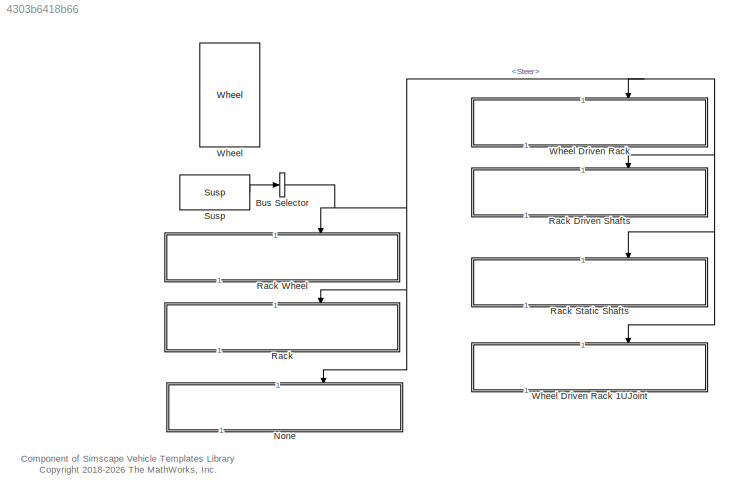
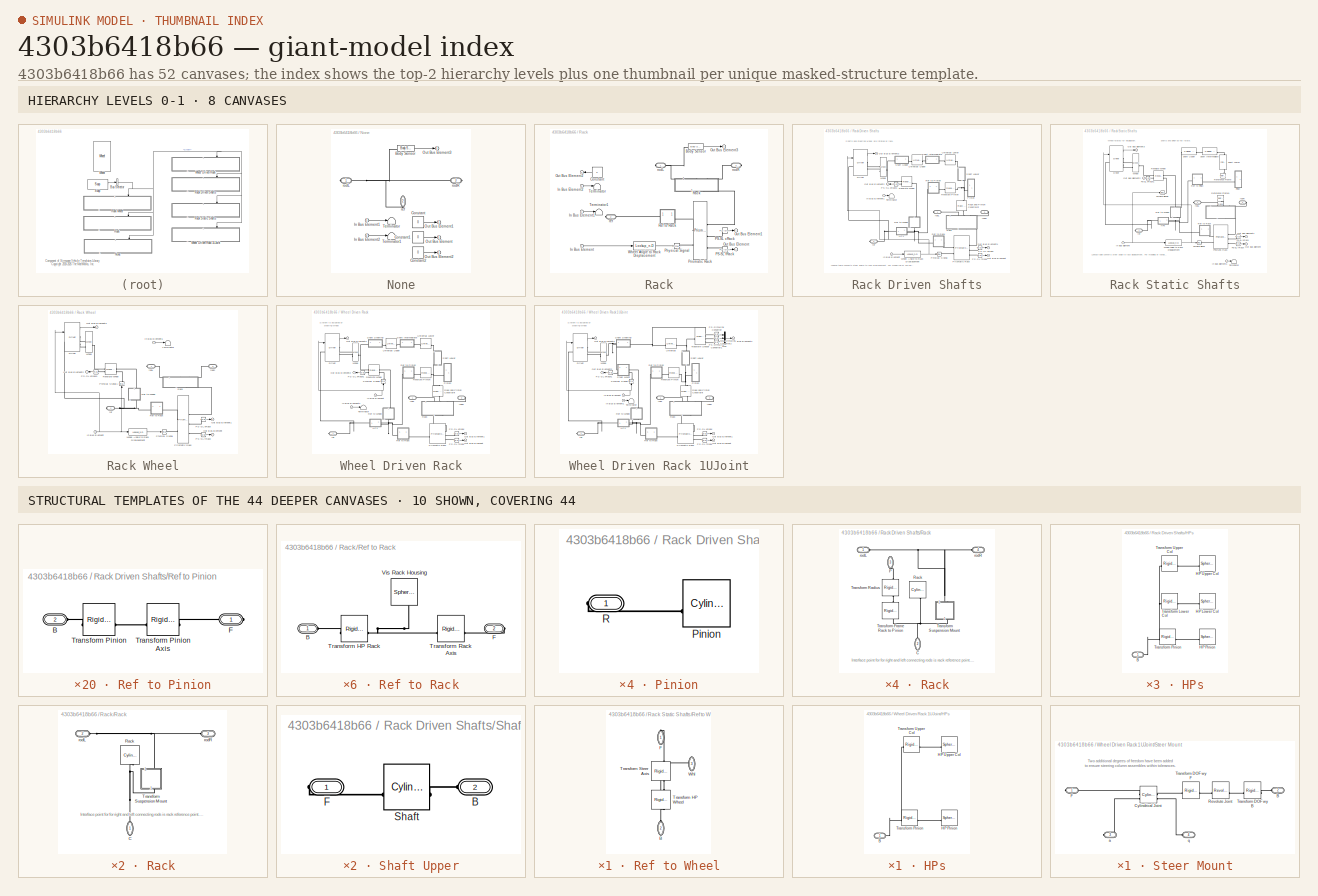
[diagram: thumbnail index - top-2 hierarchy levels (8 canvases) + 10 structural-template representatives of the remaining 44 canvases]
MODEL slx_4303b6418b66
KIND library
CONFIG SolverName = VariableStepAuto
BLOCK [BusSelector] Bus Selector
  OutputSignals = Steer
BLOCK [SubSystem] None
  NameLocation = left
  VariantControl = None
BLOCK [Reference] None/Body Sensor  REF=sm_car_lib/Sensors/Body Sensor  (lib defined in slx_05426f0848b6, slx_5dc2867fb1c9)
  SourceBlock = sm_car_lib/Sensors/Body Sensor
BLOCK [Constant] None/Constant
  Value = 0
BLOCK [Constant] None/Constant1
  Value = 0
BLOCK [Constant] None/Constant2
  Value = 0
BLOCK [Inport] None/In Bus Element1
BLOCK [Inport] None/In Bus Element2
  Port = 2
BLOCK [Outport] None/Out Bus Element
  VectorParamsAs1DForOutWhenUnconnected = off
BLOCK [Outport] None/Out Bus Element1
  VectorParamsAs1DForOutWhenUnconnected = off
BLOCK [Outport] None/Out Bus Element2
  VectorParamsAs1DForOutWhenUnconnected = off
BLOCK [Outport] None/Out Bus Element3
  VectorParamsAs1DForOutWhenUnconnected = off
BLOCK [Terminator] None/Terminator
BLOCK [Terminator] None/Terminator1
BLOCK [PMIOPort] None/ref
  NameLocation = right
  Port = 2
  Side = Right
BLOCK [PMIOPort] None/rodL
  Side = Right
BLOCK [PMIOPort] None/rodR
  Port = 3
  Side = Right
BLOCK [SubSystem] Rack
  NameLocation = left
  Tag = PublishSubsystem
  VariantControl = Rack
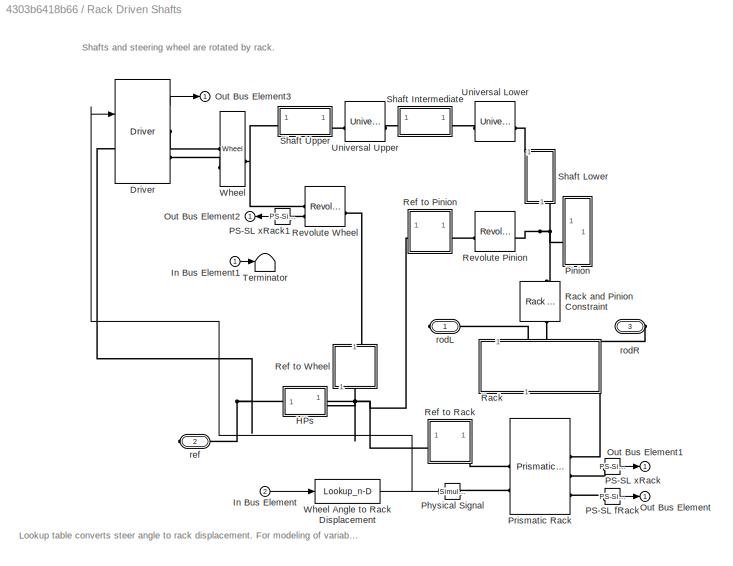
BLOCK [SubSystem] Rack Driven Shafts
  NameLocation = left
  Tag = PublishSubsystem
  VariantControl = Rack
BLOCK [Reference] Rack Driven Shafts/Driver  REF=Human_Models/Driver
  AttributesFormatString = %<LabelModeActiveChoice>
  SourceBlock = Human_Models/Driver
BLOCK [SubSystem] Rack Driven Shafts/HPs
BLOCK [PMIOPort] Rack Driven Shafts/HPs/B
  Side = Left
BLOCK [Reference] Rack Driven Shafts/HPs/HP Lower Col  REF=sm_lib/Body Elements/Spherical Solid
  SourceBlock = sm_lib/Body Elements/Spherical Solid
  SourceType = Spherical Solid
BLOCK [Reference] Rack Driven Shafts/HPs/HP Pinion  REF=sm_lib/Body Elements/Spherical Solid
  SourceBlock = sm_lib/Body Elements/Spherical Solid
  SourceType = Spherical Solid
BLOCK [Reference] Rack Driven Shafts/HPs/HP Upper Col  REF=sm_lib/Body Elements/Spherical Solid
  SourceBlock = sm_lib/Body Elements/Spherical Solid
  SourceType = Spherical Solid
BLOCK [Reference] Rack Driven Shafts/HPs/Transform Lower Col  REF=sm_lib/Frames and
Transforms/Rigid
Transform
  SourceBlock = sm_lib/Frames and\nTransforms/Rigid\nTransform
  SourceType = Rigid\nTransform
BLOCK [Reference] Rack Driven Shafts/HPs/Transform Pinion  REF=sm_lib/Frames and
Transforms/Rigid
Transform
  SourceBlock = sm_lib/Frames and\nTransforms/Rigid\nTransform
  SourceType = Rigid\nTransform
BLOCK [Reference] Rack Driven Shafts/HPs/Transform Upper Col  REF=sm_lib/Frames and
Transforms/Rigid
Transform
  SourceBlock = sm_lib/Frames and\nTransforms/Rigid\nTransform
  SourceType = Rigid\nTransform
BLOCK [Inport] Rack Driven Shafts/In Bus Element
  Port = 2
BLOCK [Inport] Rack Driven Shafts/In Bus Element1
BLOCK [Outport] Rack Driven Shafts/Out Bus Element
  VectorParamsAs1DForOutWhenUnconnected = off
BLOCK [Outport] Rack Driven Shafts/Out Bus Element1
  VectorParamsAs1DForOutWhenUnconnected = off
BLOCK [Outport] Rack Driven Shafts/Out Bus Element2
  VectorParamsAs1DForOutWhenUnconnected = off
BLOCK [Outport] Rack Driven Shafts/Out Bus Element3
  VectorParamsAs1DForOutWhenUnconnected = off
BLOCK [Reference] Rack Driven Shafts/PS-SL fRack  REF=nesl_utility/PS-Simulink
Converter
  SourceBlock = nesl_utility/PS-Simulink\nConverter
  SourceType = PS-Simulink\nConverter
BLOCK [Reference] Rack Driven Shafts/PS-SL xRack  REF=nesl_utility/PS-Simulink
Converter
  SourceBlock = nesl_utility/PS-Simulink\nConverter
  SourceType = PS-Simulink\nConverter
BLOCK [Reference] Rack Driven Shafts/PS-SL xRack1  REF=nesl_utility/PS-Simulink
Converter
  SourceBlock = nesl_utility/PS-Simulink\nConverter
  SourceType = PS-Simulink\nConverter
BLOCK [Reference] Rack Driven Shafts/Physical Signal  REF=nesl_utility/Simulink-PS
Converter
  AttributesFormatString = Filter Time Constant\n%<InputFilterTimeConstant> sec
  SourceBlock = nesl_utility/Simulink-PS\nConverter
  SourceType = Simulink-PS\nConverter
BLOCK [SubSystem] Rack Driven Shafts/Pinion
BLOCK [Reference] Rack Driven Shafts/Pinion/Pinion  REF=sm_lib/Body Elements/Cylindrical Solid
  SourceBlock = sm_lib/Body Elements/Cylindrical Solid
  SourceType = Cylindrical Solid
BLOCK [PMIOPort] Rack Driven Shafts/Pinion/R
  Side = Right
BLOCK [Reference] Rack Driven Shafts/Prismatic Rack  REF=sm_lib/Joints/Prismatic
Joint
  SourceBlock = sm_lib/Joints/Prismatic\nJoint
  SourceType = Prismatic\nJoint
BLOCK [SubSystem] Rack Driven Shafts/Rack
  NameLocation = left
BLOCK [Reference] Rack Driven Shafts/Rack and Pinion Constraint  REF=sm_lib/Gears and
Couplings/Gears/Rack and Pinion
Constraint
  NameLocation = right
  SourceBlock = sm_lib/Gears and\nCouplings/Gears/Rack and Pinion\nConstraint
  SourceType = Rack and Pinion\nConstraint
BLOCK [PMIOPort] Rack Driven Shafts/Rack/C
  NameLocation = left
  Port = 2
  Side = Right
BLOCK [PMIOPort] Rack Driven Shafts/Rack/P
  NameLocation = left
  Port = 3
  Side = Left
BLOCK [Reference] Rack Driven Shafts/Rack/Rack  REF=sm_lib/Body Elements/Cylindrical Solid
  NameLocation = right
  SourceBlock = sm_lib/Body Elements/Cylindrical Solid
  SourceType = Cylindrical Solid
BLOCK [Reference] Rack Driven Shafts/Rack/Transform Frame Rack to Pinion   REF=sm_lib/Frames and
Transforms/Rigid
Transform
  NameLocation = left
  SourceBlock = sm_lib/Frames and\nTransforms/Rigid\nTransform
  SourceType = Rigid\nTransform
BLOCK [Reference] Rack Driven Shafts/Rack/Transform Radius  REF=sm_lib/Frames and
Transforms/Rigid
Transform
  NameLocation = left
  SourceBlock = sm_lib/Frames and\nTransforms/Rigid\nTransform
  SourceType = Rigid\nTransform
BLOCK [SubSystem] Rack Driven Shafts/Rack/Transform Suspension Mount
  NameLocation = right
BLOCK [PMIOPort] Rack Driven Shafts/Rack/Transform Suspension Mount/B
  Side = Left
BLOCK [PMIOPort] Rack Driven Shafts/Rack/Transform Suspension Mount/F
  Port = 2
  Side = Right
BLOCK [Reference] Rack Driven Shafts/Rack/Transform Suspension Mount/Transform HP Rack  REF=sm_lib/Frames and
Transforms/Rigid
Transform
  SourceBlock = sm_lib/Frames and\nTransforms/Rigid\nTransform
  SourceType = Rigid\nTransform
BLOCK [Reference] Rack Driven Shafts/Rack/Transform Suspension Mount/Transform Rack Axis  REF=sm_lib/Frames and
Transforms/Rigid
Transform
  SourceBlock = sm_lib/Frames and\nTransforms/Rigid\nTransform
  SourceType = Rigid\nTransform
BLOCK [PMIOPort] Rack Driven Shafts/Rack/rodL
  Side = Left
BLOCK [PMIOPort] Rack Driven Shafts/Rack/rodR
  Port = 4
  Side = Left
BLOCK [SubSystem] Rack Driven Shafts/Ref to Pinion
BLOCK [PMIOPort] Rack Driven Shafts/Ref to Pinion/B
  Port = 2
  Side = Left
BLOCK [PMIOPort] Rack Driven Shafts/Ref to Pinion/F
  Side = Right
BLOCK [Reference] Rack Driven Shafts/Ref to Pinion/Transform Pinion  REF=sm_lib/Frames and
Transforms/Rigid
Transform
  SourceBlock = sm_lib/Frames and\nTransforms/Rigid\nTransform
  SourceType = Rigid\nTransform
BLOCK [Reference] Rack Driven Shafts/Ref to Pinion/Transform Pinion Axis  REF=sm_lib/Frames and
Transforms/Rigid
Transform
  SourceBlock = sm_lib/Frames and\nTransforms/Rigid\nTransform
  SourceType = Rigid\nTransform
BLOCK [SubSystem] Rack Driven Shafts/Ref to Rack
BLOCK [PMIOPort] Rack Driven Shafts/Ref to Rack/B
  Side = Left
BLOCK [PMIOPort] Rack Driven Shafts/Ref to Rack/F
  Port = 2
  Side = Right
BLOCK [Reference] Rack Driven Shafts/Ref to Rack/Transform HP Rack  REF=sm_lib/Frames and
Transforms/Rigid
Transform
  SourceBlock = sm_lib/Frames and\nTransforms/Rigid\nTransform
  SourceType = Rigid\nTransform
BLOCK [Reference] Rack Driven Shafts/Ref to Rack/Transform Rack Axis  REF=sm_lib/Frames and
Transforms/Rigid
Transform
  SourceBlock = sm_lib/Frames and\nTransforms/Rigid\nTransform
  SourceType = Rigid\nTransform
BLOCK [Reference] Rack Driven Shafts/Ref to Rack/Vis Rack Housing  REF=sm_lib/Body Elements/Spherical Solid
  NameLocation = left
  SourceBlock = sm_lib/Body Elements/Spherical Solid
  SourceType = Spherical Solid
BLOCK [SubSystem] Rack Driven Shafts/Ref to Wheel
  NameLocation = left
BLOCK [PMIOPort] Rack Driven Shafts/Ref to Wheel/B
  NameLocation = right
  Port = 2
  Side = Left
BLOCK [PMIOPort] Rack Driven Shafts/Ref to Wheel/F
  NameLocation = left
  Side = Right
BLOCK [Reference] Rack Driven Shafts/Ref to Wheel/Transform HP Wheel  REF=sm_lib/Frames and
Transforms/Rigid
Transform
  NameLocation = left
  SourceBlock = sm_lib/Frames and\nTransforms/Rigid\nTransform
  SourceType = Rigid\nTransform
BLOCK [Reference] Rack Driven Shafts/Ref to Wheel/Transform Steer Axis  REF=sm_lib/Frames and
Transforms/Rigid
Transform
  NameLocation = left
  SourceBlock = sm_lib/Frames and\nTransforms/Rigid\nTransform
  SourceType = Rigid\nTransform
BLOCK [Reference] Rack Driven Shafts/Revolute Pinion  REF=sm_lib/Joints/Revolute Joint
  SourceBlock = sm_lib/Joints/Revolute Joint
  SourceType = Revolute Joint
BLOCK [Reference] Rack Driven Shafts/Revolute Wheel  REF=sm_lib/Joints/Revolute Joint
  SourceBlock = sm_lib/Joints/Revolute Joint
  SourceType = Revolute Joint
BLOCK [SubSystem] Rack Driven Shafts/Shaft Intermediate
BLOCK [PMIOPort] Rack Driven Shafts/Shaft Intermediate/B
  Port = 2
  Side = Right
BLOCK [PMIOPort] Rack Driven Shafts/Shaft Intermediate/F
  Side = Left
BLOCK [Reference] Rack Driven Shafts/Shaft Intermediate/Shaft  REF=sm_lib/Body Elements/Cylindrical Solid
  SourceBlock = sm_lib/Body Elements/Cylindrical Solid
  SourceType = Cylindrical Solid
BLOCK [Reference] Rack Driven Shafts/Shaft Intermediate/Transform Universals  REF=sm_lib/Frames and
Transforms/Rigid
Transform
  SourceBlock = sm_lib/Frames and\nTransforms/Rigid\nTransform
  SourceType = Rigid\nTransform
BLOCK [SubSystem] Rack Driven Shafts/Shaft Lower
  NameLocation = left
BLOCK [PMIOPort] Rack Driven Shafts/Shaft Lower/B
  Port = 2
  Side = Right
BLOCK [PMIOPort] Rack Driven Shafts/Shaft Lower/F
  Side = Left
BLOCK [Reference] Rack Driven Shafts/Shaft Lower/Shaft  REF=sm_lib/Body Elements/Cylindrical Solid
  SourceBlock = sm_lib/Body Elements/Cylindrical Solid
  SourceType = Cylindrical Solid
BLOCK [Reference] Rack Driven Shafts/Shaft Lower/Transform Shaft  REF=sm_lib/Frames and
Transforms/Rigid
Transform
  SourceBlock = sm_lib/Frames and\nTransforms/Rigid\nTransform
  SourceType = Rigid\nTransform
BLOCK [SubSystem] Rack Driven Shafts/Shaft Upper
BLOCK [PMIOPort] Rack Driven Shafts/Shaft Upper/B
  Port = 2
  Side = Left
BLOCK [PMIOPort] Rack Driven Shafts/Shaft Upper/F
  Side = Right
BLOCK [Reference] Rack Driven Shafts/Shaft Upper/Shaft  REF=sm_lib/Body Elements/Cylindrical Solid
  SourceBlock = sm_lib/Body Elements/Cylindrical Solid
  SourceType = Cylindrical Solid
BLOCK [Terminator] Rack Driven Shafts/Terminator
BLOCK [Reference] Rack Driven Shafts/Universal Lower  REF=sm_lib/Joints/Universal
Joint
  NameLocation = top
  SourceBlock = sm_lib/Joints/Universal\nJoint
  SourceType = Universal\nJoint
BLOCK [Reference] Rack Driven Shafts/Universal Upper  REF=sm_lib/Joints/Universal
Joint
  NameLocation = top
  SourceBlock = sm_lib/Joints/Universal\nJoint
  SourceType = Universal\nJoint
BLOCK [Reference] Rack Driven Shafts/Wheel  REF=SteeringWheel_Systems/Wheel
  SourceBlock = SteeringWheel_Systems/Wheel
BLOCK [Lookup_n-D] Rack Driven Shafts/Wheel Angle to Rack Displacement
  BreakpointsForDimension1 = whl2rack_whlangle
  InputPortMap = u0
  InternalRulePriority = Speed
  NameLocation = top
  NumberOfTableDimensions = 1
  RndMeth = Simplest
  Table = whl2rack_rackdisp
BLOCK [PMIOPort] Rack Driven Shafts/ref
  Port = 2
  Side = Right
BLOCK [PMIOPort] Rack Driven Shafts/rodL
  Side = Right
BLOCK [PMIOPort] Rack Driven Shafts/rodR
  Port = 3
  Side = Right
BLOCK [SubSystem] Rack Static Shafts
  NameLocation = left
  Tag = PublishSubsystem
  VariantControl = Rack
BLOCK [Reference] Rack Static Shafts/Driver  REF=Human_Models/Driver
  AttributesFormatString = %<LabelModeActiveChoice>
  SourceBlock = Human_Models/Driver
BLOCK [SubSystem] Rack Static Shafts/HPs
BLOCK [PMIOPort] Rack Static Shafts/HPs/B
  Side = Left
BLOCK [Reference] Rack Static Shafts/HPs/HP Lower Col  REF=sm_lib/Body Elements/Spherical Solid
  SourceBlock = sm_lib/Body Elements/Spherical Solid
  SourceType = Spherical Solid
BLOCK [Reference] Rack Static Shafts/HPs/HP Pinion  REF=sm_lib/Body Elements/Spherical Solid
  SourceBlock = sm_lib/Body Elements/Spherical Solid
  SourceType = Spherical Solid
BLOCK [Reference] Rack Static Shafts/HPs/HP Upper Col  REF=sm_lib/Body Elements/Spherical Solid
  SourceBlock = sm_lib/Body Elements/Spherical Solid
  SourceType = Spherical Solid
BLOCK [Reference] Rack Static Shafts/HPs/Transform Lower Col  REF=sm_lib/Frames and
Transforms/Rigid
Transform
  SourceBlock = sm_lib/Frames and\nTransforms/Rigid\nTransform
  SourceType = Rigid\nTransform
BLOCK [Reference] Rack Static Shafts/HPs/Transform Pinion  REF=sm_lib/Frames and
Transforms/Rigid
Transform
  SourceBlock = sm_lib/Frames and\nTransforms/Rigid\nTransform
  SourceType = Rigid\nTransform
BLOCK [Reference] Rack Static Shafts/HPs/Transform Upper Col  REF=sm_lib/Frames and
Transforms/Rigid
Transform
  SourceBlock = sm_lib/Frames and\nTransforms/Rigid\nTransform
  SourceType = Rigid\nTransform
BLOCK [Inport] Rack Static Shafts/In Bus Element
  Port = 2
BLOCK [Inport] Rack Static Shafts/In Bus Element1
BLOCK [Outport] Rack Static Shafts/Out Bus Element
  VectorParamsAs1DForOutWhenUnconnected = off
BLOCK [Outport] Rack Static Shafts/Out Bus Element1
  VectorParamsAs1DForOutWhenUnconnected = off
BLOCK [Outport] Rack Static Shafts/Out Bus Element2
  VectorParamsAs1DForOutWhenUnconnected = off
BLOCK [Outport] Rack Static Shafts/Out Bus Element3
  VectorParamsAs1DForOutWhenUnconnected = off
BLOCK [Reference] Rack Static Shafts/PS-SL fRack  REF=nesl_utility/PS-Simulink
Converter
  SourceBlock = nesl_utility/PS-Simulink\nConverter
  SourceType = PS-Simulink\nConverter
BLOCK [Reference] Rack Static Shafts/PS-SL xRack  REF=nesl_utility/PS-Simulink
Converter
  SourceBlock = nesl_utility/PS-Simulink\nConverter
  SourceType = PS-Simulink\nConverter
BLOCK [Reference] Rack Static Shafts/PS-SL xRack1  REF=nesl_utility/PS-Simulink
Converter
  SourceBlock = nesl_utility/PS-Simulink\nConverter
  SourceType = PS-Simulink\nConverter
BLOCK [Reference] Rack Static Shafts/Physical Signal  REF=nesl_utility/Simulink-PS
Converter
  AttributesFormatString = Filter Time Constant\n%<InputFilterTimeConstant> sec
  SourceBlock = nesl_utility/Simulink-PS\nConverter
  SourceType = Simulink-PS\nConverter
BLOCK [Reference] Rack Static Shafts/Physical Signal1  REF=nesl_utility/Simulink-PS
Converter
  AttributesFormatString = Filter Time Constant\n%<InputFilterTimeConstant> sec
  SourceBlock = nesl_utility/Simulink-PS\nConverter
  SourceType = Simulink-PS\nConverter
BLOCK [SubSystem] Rack Static Shafts/Pinion
BLOCK [Reference] Rack Static Shafts/Pinion/Pinion  REF=sm_lib/Body Elements/Cylindrical Solid
  SourceBlock = sm_lib/Body Elements/Cylindrical Solid
  SourceType = Cylindrical Solid
BLOCK [PMIOPort] Rack Static Shafts/Pinion/R
  Side = Right
BLOCK [Reference] Rack Static Shafts/Prismatic Rack  REF=sm_lib/Joints/Prismatic
Joint
  SourceBlock = sm_lib/Joints/Prismatic\nJoint
  SourceType = Prismatic\nJoint
BLOCK [SubSystem] Rack Static Shafts/Rack
  NameLocation = left
BLOCK [PMIOPort] Rack Static Shafts/Rack/C
  NameLocation = left
  Port = 2
  Side = Right
BLOCK [PMIOPort] Rack Static Shafts/Rack/P
  NameLocation = left
  Port = 3
  Side = Left
BLOCK [Reference] Rack Static Shafts/Rack/Rack  REF=sm_lib/Body Elements/Cylindrical Solid
  NameLocation = right
  SourceBlock = sm_lib/Body Elements/Cylindrical Solid
  SourceType = Cylindrical Solid
BLOCK [Reference] Rack Static Shafts/Rack/Transform Frame Rack to Pinion   REF=sm_lib/Frames and
Transforms/Rigid
Transform
  NameLocation = left
  SourceBlock = sm_lib/Frames and\nTransforms/Rigid\nTransform
  SourceType = Rigid\nTransform
BLOCK [Reference] Rack Static Shafts/Rack/Transform Radius  REF=sm_lib/Frames and
Transforms/Rigid
Transform
  NameLocation = left
  SourceBlock = sm_lib/Frames and\nTransforms/Rigid\nTransform
  SourceType = Rigid\nTransform
BLOCK [SubSystem] Rack Static Shafts/Rack/Transform Suspension Mount
  NameLocation = right
BLOCK [PMIOPort] Rack Static Shafts/Rack/Transform Suspension Mount/B
  Side = Left
BLOCK [PMIOPort] Rack Static Shafts/Rack/Transform Suspension Mount/F
  Port = 2
  Side = Right
BLOCK [Reference] Rack Static Shafts/Rack/Transform Suspension Mount/Transform HP Rack  REF=sm_lib/Frames and
Transforms/Rigid
Transform
  SourceBlock = sm_lib/Frames and\nTransforms/Rigid\nTransform
  SourceType = Rigid\nTransform
BLOCK [Reference] Rack Static Shafts/Rack/Transform Suspension Mount/Transform Rack Axis  REF=sm_lib/Frames and
Transforms/Rigid
Transform
  SourceBlock = sm_lib/Frames and\nTransforms/Rigid\nTransform
  SourceType = Rigid\nTransform
BLOCK [PMIOPort] Rack Static Shafts/Rack/rodL
  Side = Left
BLOCK [PMIOPort] Rack Static Shafts/Rack/rodR
  Port = 4
  Side = Left
BLOCK [SubSystem] Rack Static Shafts/Ref to Pinion
BLOCK [PMIOPort] Rack Static Shafts/Ref to Pinion/B
  Port = 2
  Side = Left
BLOCK [PMIOPort] Rack Static Shafts/Ref to Pinion/F
  Side = Right
BLOCK [Reference] Rack Static Shafts/Ref to Pinion/Transform Pinion  REF=sm_lib/Frames and
Transforms/Rigid
Transform
  SourceBlock = sm_lib/Frames and\nTransforms/Rigid\nTransform
  SourceType = Rigid\nTransform
BLOCK [Reference] Rack Static Shafts/Ref to Pinion/Transform Pinion Axis  REF=sm_lib/Frames and
Transforms/Rigid
Transform
  SourceBlock = sm_lib/Frames and\nTransforms/Rigid\nTransform
  SourceType = Rigid\nTransform
BLOCK [SubSystem] Rack Static Shafts/Ref to Rack
BLOCK [PMIOPort] Rack Static Shafts/Ref to Rack/B
  Side = Left
BLOCK [PMIOPort] Rack Static Shafts/Ref to Rack/F
  Port = 2
  Side = Right
BLOCK [Reference] Rack Static Shafts/Ref to Rack/Transform HP Rack  REF=sm_lib/Frames and
Transforms/Rigid
Transform
  SourceBlock = sm_lib/Frames and\nTransforms/Rigid\nTransform
  SourceType = Rigid\nTransform
BLOCK [Reference] Rack Static Shafts/Ref to Rack/Transform Rack Axis  REF=sm_lib/Frames and
Transforms/Rigid
Transform
  SourceBlock = sm_lib/Frames and\nTransforms/Rigid\nTransform
  SourceType = Rigid\nTransform
BLOCK [Reference] Rack Static Shafts/Ref to Rack/Vis Rack Housing  REF=sm_lib/Body Elements/Spherical Solid
  NameLocation = left
  SourceBlock = sm_lib/Body Elements/Spherical Solid
  SourceType = Spherical Solid
BLOCK [SubSystem] Rack Static Shafts/Ref to Wheel
  NameLocation = left
BLOCK [PMIOPort] Rack Static Shafts/Ref to Wheel/B
  NameLocation = right
  Port = 2
  Side = Left
BLOCK [PMIOPort] Rack Static Shafts/Ref to Wheel/F
  NameLocation = left
  Side = Right
BLOCK [Reference] Rack Static Shafts/Ref to Wheel/Transform HP Wheel  REF=sm_lib/Frames and
Transforms/Rigid
Transform
  NameLocation = left
  SourceBlock = sm_lib/Frames and\nTransforms/Rigid\nTransform
  SourceType = Rigid\nTransform
BLOCK [Reference] Rack Static Shafts/Ref to Wheel/Transform Steer Axis  REF=sm_lib/Frames and
Transforms/Rigid
Transform
  NameLocation = left
  SourceBlock = sm_lib/Frames and\nTransforms/Rigid\nTransform
  SourceType = Rigid\nTransform
BLOCK [PMIOPort] Rack Static Shafts/Ref to Wheel/Whl
  NameLocation = left
  Port = 3
  Side = Right
BLOCK [Reference] Rack Static Shafts/Reference Frame  REF=sm_lib/Frames and
Transforms/Reference
Frame
  NameLocation = right
  SourceBlock = sm_lib/Frames and\nTransforms/Reference\nFrame
  SourceType = Reference\nFrame
BLOCK [Reference] Rack Static Shafts/Reference Frame1  REF=sm_lib/Frames and
Transforms/Reference
Frame
  NameLocation = left
  SourceBlock = sm_lib/Frames and\nTransforms/Reference\nFrame
  SourceType = Reference\nFrame
BLOCK [Reference] Rack Static Shafts/Revolute Wheel  REF=sm_lib/Joints/Revolute Joint
  SourceBlock = sm_lib/Joints/Revolute Joint
  SourceType = Revolute Joint
BLOCK [Reference] Rack Static Shafts/Shaft Intermediate  REF=sm_car_lib/Utilities/Cylinder Between  (lib defined in slx_05426f0848b6, slx_5dc2867fb1c9)
Two Points
  SourceBlock = sm_car_lib/Utilities/Cylinder Between\nTwo Points
  SourceType = Cylinder between two points
BLOCK [Reference] Rack Static Shafts/Shaft Lower  REF=sm_car_lib/Utilities/Cylinder Between  (lib defined in slx_05426f0848b6, slx_5dc2867fb1c9)
Two Points
  NameLocation = right
  SourceBlock = sm_car_lib/Utilities/Cylinder Between\nTwo Points
  SourceType = Cylinder between two points
BLOCK [Reference] Rack Static Shafts/Shaft Upper  REF=sm_car_lib/Utilities/Cylinder Between  (lib defined in slx_05426f0848b6, slx_5dc2867fb1c9)
Two Points
  SourceBlock = sm_car_lib/Utilities/Cylinder Between\nTwo Points
  SourceType = Cylinder between two points
BLOCK [Terminator] Rack Static Shafts/Terminator
BLOCK [Reference] Rack Static Shafts/Wheel  REF=SteeringWheel_Systems/Wheel
  SourceBlock = SteeringWheel_Systems/Wheel
BLOCK [Lookup_n-D] Rack Static Shafts/Wheel Angle to Rack Displacement
  BreakpointsForDimension1 = whl2rack_whlangle
  InputPortMap = u0
  InternalRulePriority = Speed
  NameLocation = top
  NumberOfTableDimensions = 1
  RndMeth = Simplest
  Table = whl2rack_rackdisp
BLOCK [PMIOPort] Rack Static Shafts/ref
  Port = 2
  Side = Right
BLOCK [PMIOPort] Rack Static Shafts/rodL
  Side = Right
BLOCK [PMIOPort] Rack Static Shafts/rodR
  Port = 3
  Side = Right
BLOCK [SubSystem] Rack Wheel
  NameLocation = left
  Tag = PublishSubsystem
  VariantControl = Rack
BLOCK [Reference] Rack Wheel/Driver  REF=Human_Models/Driver
  AttributesFormatString = %<LabelModeActiveChoice>
  SourceBlock = Human_Models/Driver
BLOCK [Inport] Rack Wheel/In Bus Element
  Port = 2
BLOCK [Inport] Rack Wheel/In Bus Element1
BLOCK [Outport] Rack Wheel/Out Bus Element
  VectorParamsAs1DForOutWhenUnconnected = off
BLOCK [Outport] Rack Wheel/Out Bus Element1
  VectorParamsAs1DForOutWhenUnconnected = off
BLOCK [Outport] Rack Wheel/Out Bus Element2
  VectorParamsAs1DForOutWhenUnconnected = off
BLOCK [Outport] Rack Wheel/Out Bus Element3
  VectorParamsAs1DForOutWhenUnconnected = off
BLOCK [Reference] Rack Wheel/PS-SL fRack  REF=nesl_utility/PS-Simulink
Converter
  SourceBlock = nesl_utility/PS-Simulink\nConverter
  SourceType = PS-Simulink\nConverter
BLOCK [Reference] Rack Wheel/PS-SL xRack  REF=nesl_utility/PS-Simulink
Converter
  SourceBlock = nesl_utility/PS-Simulink\nConverter
  SourceType = PS-Simulink\nConverter
BLOCK [Reference] Rack Wheel/PS-SL xRack1  REF=nesl_utility/PS-Simulink
Converter
  SourceBlock = nesl_utility/PS-Simulink\nConverter
  SourceType = PS-Simulink\nConverter
BLOCK [Reference] Rack Wheel/Physical Signal  REF=nesl_utility/Simulink-PS
Converter
  AttributesFormatString = Filter Time Constant\n%<InputFilterTimeConstant> sec
  SourceBlock = nesl_utility/Simulink-PS\nConverter
  SourceType = Simulink-PS\nConverter
BLOCK [Reference] Rack Wheel/Physical Signal1  REF=nesl_utility/Simulink-PS
Converter
  AttributesFormatString = Filter Time Constant\n%<InputFilterTimeConstant> sec
  NameLocation = left
  SourceBlock = nesl_utility/Simulink-PS\nConverter
  SourceType = Simulink-PS\nConverter
BLOCK [Reference] Rack Wheel/Prismatic Rack  REF=sm_lib/Joints/Prismatic
Joint
  SourceBlock = sm_lib/Joints/Prismatic\nJoint
  SourceType = Prismatic\nJoint
BLOCK [SubSystem] Rack Wheel/Rack
  NameLocation = left
BLOCK [PMIOPort] Rack Wheel/Rack/C
  NameLocation = left
  Side = Right
BLOCK [Reference] Rack Wheel/Rack/Rack  REF=sm_lib/Body Elements/Cylindrical Solid
  NameLocation = left
  SourceBlock = sm_lib/Body Elements/Cylindrical Solid
  SourceType = Cylindrical Solid
BLOCK [SubSystem] Rack Wheel/Rack/Transform Suspension Mount
  NameLocation = right
BLOCK [PMIOPort] Rack Wheel/Rack/Transform Suspension Mount/B
  Side = Left
BLOCK [PMIOPort] Rack Wheel/Rack/Transform Suspension Mount/F
  Port = 2
  Side = Right
BLOCK [Reference] Rack Wheel/Rack/Transform Suspension Mount/Transform HP Rack  REF=sm_lib/Frames and
Transforms/Rigid
Transform
  SourceBlock = sm_lib/Frames and\nTransforms/Rigid\nTransform
  SourceType = Rigid\nTransform
BLOCK [Reference] Rack Wheel/Rack/Transform Suspension Mount/Transform Rack Axis  REF=sm_lib/Frames and
Transforms/Rigid
Transform
  SourceBlock = sm_lib/Frames and\nTransforms/Rigid\nTransform
  SourceType = Rigid\nTransform
BLOCK [PMIOPort] Rack Wheel/Rack/rodL
  Port = 2
  Side = Left
BLOCK [PMIOPort] Rack Wheel/Rack/rodR
  Port = 3
  Side = Left
BLOCK [SubSystem] Rack Wheel/Ref to Rack
BLOCK [PMIOPort] Rack Wheel/Ref to Rack/B
  Side = Left
BLOCK [PMIOPort] Rack Wheel/Ref to Rack/F
  Port = 2
  Side = Right
BLOCK [Reference] Rack Wheel/Ref to Rack/Transform HP Rack  REF=sm_lib/Frames and
Transforms/Rigid
Transform
  SourceBlock = sm_lib/Frames and\nTransforms/Rigid\nTransform
  SourceType = Rigid\nTransform
BLOCK [Reference] Rack Wheel/Ref to Rack/Transform Rack Axis  REF=sm_lib/Frames and
Transforms/Rigid
Transform
  SourceBlock = sm_lib/Frames and\nTransforms/Rigid\nTransform
  SourceType = Rigid\nTransform
BLOCK [Reference] Rack Wheel/Ref to Rack/Vis Rack Housing  REF=sm_lib/Body Elements/Spherical Solid
  NameLocation = left
  SourceBlock = sm_lib/Body Elements/Spherical Solid
  SourceType = Spherical Solid
BLOCK [SubSystem] Rack Wheel/Ref to Wheel
  NameLocation = right
BLOCK [PMIOPort] Rack Wheel/Ref to Wheel/B
  NameLocation = right
  Port = 2
  Side = Left
BLOCK [PMIOPort] Rack Wheel/Ref to Wheel/F
  NameLocation = left
  Side = Right
BLOCK [Reference] Rack Wheel/Ref to Wheel/Transform HP Wheel  REF=sm_lib/Frames and
Transforms/Rigid
Transform
  NameLocation = left
  SourceBlock = sm_lib/Frames and\nTransforms/Rigid\nTransform
  SourceType = Rigid\nTransform
BLOCK [Reference] Rack Wheel/Ref to Wheel/Transform Steer Axis  REF=sm_lib/Frames and
Transforms/Rigid
Transform
  NameLocation = left
  SourceBlock = sm_lib/Frames and\nTransforms/Rigid\nTransform
  SourceType = Rigid\nTransform
BLOCK [Reference] Rack Wheel/Revolute Wheel  REF=sm_lib/Joints/Revolute Joint
  SourceBlock = sm_lib/Joints/Revolute Joint
  SourceType = Revolute Joint
BLOCK [Terminator] Rack Wheel/Terminator
BLOCK [Reference] Rack Wheel/Wheel  REF=SteeringWheel_Systems/Wheel
  SourceBlock = SteeringWheel_Systems/Wheel
BLOCK [Lookup_n-D] Rack Wheel/Wheel Angle to Rack Displacement
  BreakpointsForDimension1 = whl2rack_whlangle
  InputPortMap = u0
  InternalRulePriority = Speed
  NumberOfTableDimensions = 1
  RndMeth = Simplest
  Table = whl2rack_rackdisp
BLOCK [PMIOPort] Rack Wheel/ref
  Port = 2
  Side = Right
BLOCK [PMIOPort] Rack Wheel/rodL
  Side = Right
BLOCK [PMIOPort] Rack Wheel/rodR
  Port = 3
  Side = Right
BLOCK [Reference] Rack/Body Sensor  REF=sm_car_lib/Sensors/Body Sensor  (lib defined in slx_05426f0848b6, slx_5dc2867fb1c9)
  SourceBlock = sm_car_lib/Sensors/Body Sensor
BLOCK [Constant] Rack/Constant
  Value = 0
BLOCK [Inport] Rack/In Bus Element
  Port = 2
BLOCK [Inport] Rack/In Bus Element1
BLOCK [Inport] Rack/In Bus Element2
  Port = 2
BLOCK [Outport] Rack/Out Bus Element
  VectorParamsAs1DForOutWhenUnconnected = off
BLOCK [Outport] Rack/Out Bus Element1
  VectorParamsAs1DForOutWhenUnconnected = off
BLOCK [Outport] Rack/Out Bus Element2
  VectorParamsAs1DForOutWhenUnconnected = off
BLOCK [Outport] Rack/Out Bus Element3
  VectorParamsAs1DForOutWhenUnconnected = off
BLOCK [Reference] Rack/PS-SL fRack  REF=nesl_utility/PS-Simulink
Converter
  SourceBlock = nesl_utility/PS-Simulink\nConverter
  SourceType = PS-Simulink\nConverter
BLOCK [Reference] Rack/PS-SL xRack  REF=nesl_utility/PS-Simulink
Converter
  SourceBlock = nesl_utility/PS-Simulink\nConverter
  SourceType = PS-Simulink\nConverter
BLOCK [Reference] Rack/Physical Signal  REF=nesl_utility/Simulink-PS
Converter
  AttributesFormatString = Filter Time Constant\n%<InputFilterTimeConstant> sec
  SourceBlock = nesl_utility/Simulink-PS\nConverter
  SourceType = Simulink-PS\nConverter
BLOCK [Reference] Rack/Prismatic Rack  REF=sm_lib/Joints/Prismatic
Joint
  SourceBlock = sm_lib/Joints/Prismatic\nJoint
  SourceType = Prismatic\nJoint
BLOCK [SubSystem] Rack/Rack
  NameLocation = left
BLOCK [PMIOPort] Rack/Rack/C
  NameLocation = left
  Side = Right
BLOCK [Reference] Rack/Rack/Rack  REF=sm_lib/Body Elements/Cylindrical Solid
  NameLocation = left
  SourceBlock = sm_lib/Body Elements/Cylindrical Solid
  SourceType = Cylindrical Solid
BLOCK [SubSystem] Rack/Rack/Transform Suspension Mount
  NameLocation = right
BLOCK [PMIOPort] Rack/Rack/Transform Suspension Mount/B
  Side = Left
BLOCK [PMIOPort] Rack/Rack/Transform Suspension Mount/F
  Port = 2
  Side = Right
BLOCK [Reference] Rack/Rack/Transform Suspension Mount/Transform HP Rack  REF=sm_lib/Frames and
Transforms/Rigid
Transform
  SourceBlock = sm_lib/Frames and\nTransforms/Rigid\nTransform
  SourceType = Rigid\nTransform
BLOCK [Reference] Rack/Rack/Transform Suspension Mount/Transform Rack Axis  REF=sm_lib/Frames and
Transforms/Rigid
Transform
  SourceBlock = sm_lib/Frames and\nTransforms/Rigid\nTransform
  SourceType = Rigid\nTransform
BLOCK [PMIOPort] Rack/Rack/rodL
  Port = 2
  Side = Left
BLOCK [PMIOPort] Rack/Rack/rodR
  Port = 3
  Side = Left
BLOCK [SubSystem] Rack/Ref to Rack
BLOCK [PMIOPort] Rack/Ref to Rack/B
  Side = Left
BLOCK [PMIOPort] Rack/Ref to Rack/F
  Port = 2
  Side = Right
BLOCK [Reference] Rack/Ref to Rack/Transform HP Rack  REF=sm_lib/Frames and
Transforms/Rigid
Transform
  SourceBlock = sm_lib/Frames and\nTransforms/Rigid\nTransform
  SourceType = Rigid\nTransform
BLOCK [Reference] Rack/Ref to Rack/Transform Rack Axis  REF=sm_lib/Frames and
Transforms/Rigid
Transform
  SourceBlock = sm_lib/Frames and\nTransforms/Rigid\nTransform
  SourceType = Rigid\nTransform
BLOCK [Reference] Rack/Ref to Rack/Vis Rack Housing  REF=sm_lib/Body Elements/Spherical Solid
  NameLocation = left
  SourceBlock = sm_lib/Body Elements/Spherical Solid
  SourceType = Spherical Solid
BLOCK [Terminator] Rack/Terminator
BLOCK [Terminator] Rack/Terminator1
BLOCK [Lookup_n-D] Rack/Wheel Angle to Rack Displacement
  BreakpointsForDimension1 = whl2rack_whlangle
  InputPortMap = u0
  InternalRulePriority = Speed
  NumberOfTableDimensions = 1
  RndMeth = Simplest
  Table = whl2rack_rackdisp
BLOCK [PMIOPort] Rack/ref
  Port = 2
  Side = Right
BLOCK [PMIOPort] Rack/rodL
  Side = Right
BLOCK [PMIOPort] Rack/rodR
  Port = 3
  Side = Right
BLOCK [Reference] Susp  REF=sm_car_lib/Inputs/Control Bus/Susp  (lib defined in slx_05426f0848b6, slx_5dc2867fb1c9)
  SourceBlock = sm_car_lib/Inputs/Control Bus/Susp
BLOCK [Reference] Wheel  REF=SteeringWheel_Systems/Wheel
  SourceBlock = SteeringWheel_Systems/Wheel
BLOCK [SubSystem] Wheel Driven Rack
  NameLocation = left
  Tag = PublishSubsystem
  VariantControl = Rack
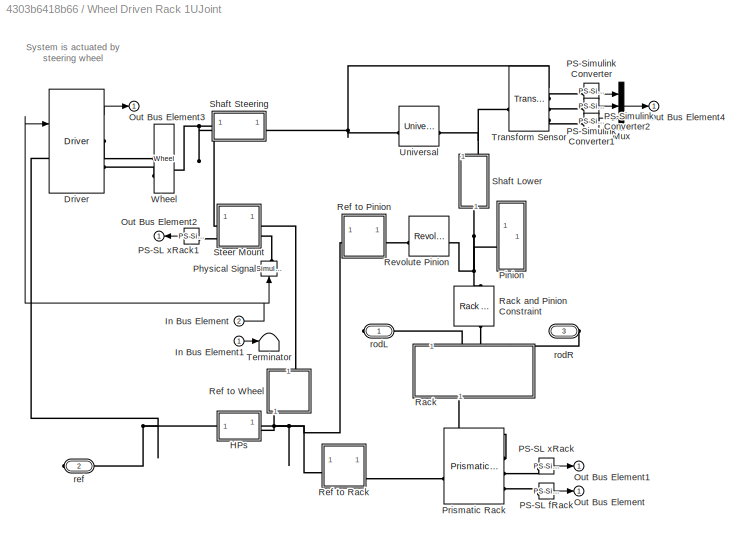
BLOCK [SubSystem] Wheel Driven Rack 1UJoint
  NameLocation = left
  Tag = PublishSubsystem
  VariantControl = Rack
BLOCK [Reference] Wheel Driven Rack 1UJoint/Driver  REF=Human_Models/Driver
  AttributesFormatString = %<LabelModeActiveChoice>
  SourceBlock = Human_Models/Driver
BLOCK [SubSystem] Wheel Driven Rack 1UJoint/HPs
BLOCK [PMIOPort] Wheel Driven Rack 1UJoint/HPs/B
  Side = Left
BLOCK [Reference] Wheel Driven Rack 1UJoint/HPs/HP Pinion  REF=sm_lib/Body Elements/Spherical Solid
  SourceBlock = sm_lib/Body Elements/Spherical Solid
  SourceType = Spherical Solid
BLOCK [Reference] Wheel Driven Rack 1UJoint/HPs/HP Upper Col  REF=sm_lib/Body Elements/Spherical Solid
  SourceBlock = sm_lib/Body Elements/Spherical Solid
  SourceType = Spherical Solid
BLOCK [Reference] Wheel Driven Rack 1UJoint/HPs/Transform Pinion  REF=sm_lib/Frames and
Transforms/Rigid
Transform
  SourceBlock = sm_lib/Frames and\nTransforms/Rigid\nTransform
  SourceType = Rigid\nTransform
BLOCK [Reference] Wheel Driven Rack 1UJoint/HPs/Transform Upper Col  REF=sm_lib/Frames and
Transforms/Rigid
Transform
  SourceBlock = sm_lib/Frames and\nTransforms/Rigid\nTransform
  SourceType = Rigid\nTransform
BLOCK [Inport] Wheel Driven Rack 1UJoint/In Bus Element
  Port = 2
BLOCK [Inport] Wheel Driven Rack 1UJoint/In Bus Element1
BLOCK [Mux] Wheel Driven Rack 1UJoint/Mux
  DisplayOption = bar
  Inputs = 3
BLOCK [Outport] Wheel Driven Rack 1UJoint/Out Bus Element
  VectorParamsAs1DForOutWhenUnconnected = off
BLOCK [Outport] Wheel Driven Rack 1UJoint/Out Bus Element1
  VectorParamsAs1DForOutWhenUnconnected = off
BLOCK [Outport] Wheel Driven Rack 1UJoint/Out Bus Element2
  VectorParamsAs1DForOutWhenUnconnected = off
BLOCK [Outport] Wheel Driven Rack 1UJoint/Out Bus Element3
  VectorParamsAs1DForOutWhenUnconnected = off
BLOCK [Outport] Wheel Driven Rack 1UJoint/Out Bus Element4
  VectorParamsAs1DForOutWhenUnconnected = off
BLOCK [Reference] Wheel Driven Rack 1UJoint/PS-SL fRack  REF=nesl_utility/PS-Simulink
Converter
  SourceBlock = nesl_utility/PS-Simulink\nConverter
  SourceType = PS-Simulink\nConverter
BLOCK [Reference] Wheel Driven Rack 1UJoint/PS-SL xRack  REF=nesl_utility/PS-Simulink
Converter
  SourceBlock = nesl_utility/PS-Simulink\nConverter
  SourceType = PS-Simulink\nConverter
BLOCK [Reference] Wheel Driven Rack 1UJoint/PS-SL xRack1  REF=nesl_utility/PS-Simulink
Converter
  SourceBlock = nesl_utility/PS-Simulink\nConverter
  SourceType = PS-Simulink\nConverter
BLOCK [Reference] Wheel Driven Rack 1UJoint/PS-Simulink Converter  REF=nesl_utility/PS-Simulink
Converter
  SourceBlock = nesl_utility/PS-Simulink\nConverter
  SourceType = PS-Simulink\nConverter
BLOCK [Reference] Wheel Driven Rack 1UJoint/PS-Simulink Converter1  REF=nesl_utility/PS-Simulink
Converter
  SourceBlock = nesl_utility/PS-Simulink\nConverter
  SourceType = PS-Simulink\nConverter
BLOCK [Reference] Wheel Driven Rack 1UJoint/PS-Simulink Converter2  REF=nesl_utility/PS-Simulink
Converter
  SourceBlock = nesl_utility/PS-Simulink\nConverter
  SourceType = PS-Simulink\nConverter
BLOCK [Reference] Wheel Driven Rack 1UJoint/Physical Signal  REF=nesl_utility/Simulink-PS
Converter
  AttributesFormatString = Filter Time Constant\n%<InputFilterTimeConstant> sec
  NameLocation = left
  SourceBlock = nesl_utility/Simulink-PS\nConverter
  SourceType = Simulink-PS\nConverter
BLOCK [SubSystem] Wheel Driven Rack 1UJoint/Pinion
BLOCK [Reference] Wheel Driven Rack 1UJoint/Pinion/Pinion  REF=sm_lib/Body Elements/Cylindrical Solid
  SourceBlock = sm_lib/Body Elements/Cylindrical Solid
  SourceType = Cylindrical Solid
BLOCK [PMIOPort] Wheel Driven Rack 1UJoint/Pinion/R
  Side = Right
BLOCK [Reference] Wheel Driven Rack 1UJoint/Prismatic Rack  REF=sm_lib/Joints/Prismatic
Joint
  SourceBlock = sm_lib/Joints/Prismatic\nJoint
  SourceType = Prismatic\nJoint
BLOCK [SubSystem] Wheel Driven Rack 1UJoint/Rack
  NameLocation = left
BLOCK [Reference] Wheel Driven Rack 1UJoint/Rack and Pinion Constraint  REF=sm_lib/Gears and
Couplings/Gears/Rack and Pinion
Constraint
  NameLocation = right
  SourceBlock = sm_lib/Gears and\nCouplings/Gears/Rack and Pinion\nConstraint
  SourceType = Rack and Pinion\nConstraint
BLOCK [PMIOPort] Wheel Driven Rack 1UJoint/Rack/C
  NameLocation = left
  Port = 2
  Side = Right
BLOCK [PMIOPort] Wheel Driven Rack 1UJoint/Rack/P
  NameLocation = left
  Port = 3
  Side = Left
BLOCK [Reference] Wheel Driven Rack 1UJoint/Rack/Rack  REF=sm_lib/Body Elements/Cylindrical Solid
  NameLocation = right
  SourceBlock = sm_lib/Body Elements/Cylindrical Solid
  SourceType = Cylindrical Solid
BLOCK [Reference] Wheel Driven Rack 1UJoint/Rack/Transform Frame Rack to Pinion   REF=sm_lib/Frames and
Transforms/Rigid
Transform
  NameLocation = left
  SourceBlock = sm_lib/Frames and\nTransforms/Rigid\nTransform
  SourceType = Rigid\nTransform
BLOCK [Reference] Wheel Driven Rack 1UJoint/Rack/Transform Radius  REF=sm_lib/Frames and
Transforms/Rigid
Transform
  NameLocation = left
  SourceBlock = sm_lib/Frames and\nTransforms/Rigid\nTransform
  SourceType = Rigid\nTransform
BLOCK [SubSystem] Wheel Driven Rack 1UJoint/Rack/Transform Suspension Mount
  NameLocation = right
BLOCK [PMIOPort] Wheel Driven Rack 1UJoint/Rack/Transform Suspension Mount/B
  Side = Left
BLOCK [PMIOPort] Wheel Driven Rack 1UJoint/Rack/Transform Suspension Mount/F
  Port = 2
  Side = Right
BLOCK [Reference] Wheel Driven Rack 1UJoint/Rack/Transform Suspension Mount/Transform HP Rack  REF=sm_lib/Frames and
Transforms/Rigid
Transform
  SourceBlock = sm_lib/Frames and\nTransforms/Rigid\nTransform
  SourceType = Rigid\nTransform
BLOCK [Reference] Wheel Driven Rack 1UJoint/Rack/Transform Suspension Mount/Transform Rack Axis  REF=sm_lib/Frames and
Transforms/Rigid
Transform
  SourceBlock = sm_lib/Frames and\nTransforms/Rigid\nTransform
  SourceType = Rigid\nTransform
BLOCK [PMIOPort] Wheel Driven Rack 1UJoint/Rack/rodL
  Side = Left
BLOCK [PMIOPort] Wheel Driven Rack 1UJoint/Rack/rodR
  Port = 4
  Side = Left
BLOCK [SubSystem] Wheel Driven Rack 1UJoint/Ref to Pinion
BLOCK [PMIOPort] Wheel Driven Rack 1UJoint/Ref to Pinion/B
  Port = 2
  Side = Left
BLOCK [PMIOPort] Wheel Driven Rack 1UJoint/Ref to Pinion/F
  Side = Right
BLOCK [Reference] Wheel Driven Rack 1UJoint/Ref to Pinion/Transform Pinion  REF=sm_lib/Frames and
Transforms/Rigid
Transform
  SourceBlock = sm_lib/Frames and\nTransforms/Rigid\nTransform
  SourceType = Rigid\nTransform
BLOCK [Reference] Wheel Driven Rack 1UJoint/Ref to Pinion/Transform Pinion Axis  REF=sm_lib/Frames and
Transforms/Rigid
Transform
  SourceBlock = sm_lib/Frames and\nTransforms/Rigid\nTransform
  SourceType = Rigid\nTransform
BLOCK [SubSystem] Wheel Driven Rack 1UJoint/Ref to Rack
BLOCK [PMIOPort] Wheel Driven Rack 1UJoint/Ref to Rack/B
  Side = Left
BLOCK [PMIOPort] Wheel Driven Rack 1UJoint/Ref to Rack/F
  Port = 2
  Side = Right
BLOCK [Reference] Wheel Driven Rack 1UJoint/Ref to Rack/Transform HP Rack  REF=sm_lib/Frames and
Transforms/Rigid
Transform
  SourceBlock = sm_lib/Frames and\nTransforms/Rigid\nTransform
  SourceType = Rigid\nTransform
BLOCK [Reference] Wheel Driven Rack 1UJoint/Ref to Rack/Transform Rack Axis  REF=sm_lib/Frames and
Transforms/Rigid
Transform
  SourceBlock = sm_lib/Frames and\nTransforms/Rigid\nTransform
  SourceType = Rigid\nTransform
BLOCK [Reference] Wheel Driven Rack 1UJoint/Ref to Rack/Vis Rack Housing  REF=sm_lib/Body Elements/Spherical Solid
  NameLocation = left
  SourceBlock = sm_lib/Body Elements/Spherical Solid
  SourceType = Spherical Solid
BLOCK [SubSystem] Wheel Driven Rack 1UJoint/Ref to Wheel
  NameLocation = left
BLOCK [PMIOPort] Wheel Driven Rack 1UJoint/Ref to Wheel/B
  NameLocation = right
  Port = 2
  Side = Left
BLOCK [PMIOPort] Wheel Driven Rack 1UJoint/Ref to Wheel/F
  NameLocation = left
  Side = Right
BLOCK [Reference] Wheel Driven Rack 1UJoint/Ref to Wheel/Transform HP Wheel  REF=sm_lib/Frames and
Transforms/Rigid
Transform
  NameLocation = left
  SourceBlock = sm_lib/Frames and\nTransforms/Rigid\nTransform
  SourceType = Rigid\nTransform
BLOCK [Reference] Wheel Driven Rack 1UJoint/Ref to Wheel/Transform Steer Axis  REF=sm_lib/Frames and
Transforms/Rigid
Transform
  NameLocation = left
  SourceBlock = sm_lib/Frames and\nTransforms/Rigid\nTransform
  SourceType = Rigid\nTransform
BLOCK [Reference] Wheel Driven Rack 1UJoint/Revolute Pinion  REF=sm_lib/Joints/Revolute Joint
  SourceBlock = sm_lib/Joints/Revolute Joint
  SourceType = Revolute Joint
BLOCK [SubSystem] Wheel Driven Rack 1UJoint/Shaft Lower
  NameLocation = left
BLOCK [PMIOPort] Wheel Driven Rack 1UJoint/Shaft Lower/B
  Port = 2
  Side = Right
BLOCK [PMIOPort] Wheel Driven Rack 1UJoint/Shaft Lower/F
  Side = Left
BLOCK [Reference] Wheel Driven Rack 1UJoint/Shaft Lower/Shaft  REF=sm_lib/Body Elements/Cylindrical Solid
  SourceBlock = sm_lib/Body Elements/Cylindrical Solid
  SourceType = Cylindrical Solid
BLOCK [Reference] Wheel Driven Rack 1UJoint/Shaft Lower/Transform Shaft  REF=sm_lib/Frames and
Transforms/Rigid
Transform
  SourceBlock = sm_lib/Frames and\nTransforms/Rigid\nTransform
  SourceType = Rigid\nTransform
BLOCK [SubSystem] Wheel Driven Rack 1UJoint/Shaft Steering
BLOCK [PMIOPort] Wheel Driven Rack 1UJoint/Shaft Steering/B
  Port = 2
  Side = Left
BLOCK [PMIOPort] Wheel Driven Rack 1UJoint/Shaft Steering/F
  Side = Right
BLOCK [Reference] Wheel Driven Rack 1UJoint/Shaft Steering/Rigid Transform  REF=sm_lib/Frames and
Transforms/Rigid
Transform
  SourceBlock = sm_lib/Frames and\nTransforms/Rigid\nTransform
  SourceType = Rigid\nTransform
BLOCK [Reference] Wheel Driven Rack 1UJoint/Shaft Steering/Shaft  REF=sm_lib/Body Elements/Cylindrical Solid
  SourceBlock = sm_lib/Body Elements/Cylindrical Solid
  SourceType = Cylindrical Solid
BLOCK [SubSystem] Wheel Driven Rack 1UJoint/Steer Mount
  NameLocation = top
BLOCK [PMIOPort] Wheel Driven Rack 1UJoint/Steer Mount/B
  Port = 2
  Side = Left
BLOCK [Reference] Wheel Driven Rack 1UJoint/Steer Mount/Cylindrical Joint  REF=sm_lib/Joints/Cylindrical
Joint
  SourceBlock = sm_lib/Joints/Cylindrical\nJoint
  SourceType = Cylindrical\nJoint
BLOCK [PMIOPort] Wheel Driven Rack 1UJoint/Steer Mount/F
  Side = Right
BLOCK [Reference] Wheel Driven Rack 1UJoint/Steer Mount/Revolute Joint  REF=sm_lib/Joints/Revolute Joint
  SourceBlock = sm_lib/Joints/Revolute Joint
  SourceType = Revolute Joint
BLOCK [Reference] Wheel Driven Rack 1UJoint/Steer Mount/Transform DOF wy B  REF=sm_lib/Frames and
Transforms/Rigid
Transform
  SourceBlock = sm_lib/Frames and\nTransforms/Rigid\nTransform
  SourceType = Rigid\nTransform
BLOCK [Reference] Wheel Driven Rack 1UJoint/Steer Mount/Transform DOF wy F  REF=sm_lib/Frames and
Transforms/Rigid
Transform
  SourceBlock = sm_lib/Frames and\nTransforms/Rigid\nTransform
  SourceType = Rigid\nTransform
BLOCK [PMIOPort] Wheel Driven Rack 1UJoint/Steer Mount/a
  Port = 3
  Side = Right
BLOCK [PMIOPort] Wheel Driven Rack 1UJoint/Steer Mount/q
  Port = 4
  Side = Left
BLOCK [Terminator] Wheel Driven Rack 1UJoint/Terminator
BLOCK [Reference] Wheel Driven Rack 1UJoint/Transform Sensor  REF=sm_lib/Frames and
Transforms/Transform
Sensor
  SourceBlock = sm_lib/Frames and\nTransforms/Transform\nSensor
  SourceType = Transform\nSensor
BLOCK [Reference] Wheel Driven Rack 1UJoint/Universal  REF=sm_lib/Joints/Universal
Joint
  NameLocation = top
  SourceBlock = sm_lib/Joints/Universal\nJoint
  SourceType = Universal\nJoint
BLOCK [Reference] Wheel Driven Rack 1UJoint/Wheel  REF=SteeringWheel_Systems/Wheel
  SourceBlock = SteeringWheel_Systems/Wheel
BLOCK [PMIOPort] Wheel Driven Rack 1UJoint/ref
  Port = 2
  Side = Right
BLOCK [PMIOPort] Wheel Driven Rack 1UJoint/rodL
  Side = Right
BLOCK [PMIOPort] Wheel Driven Rack 1UJoint/rodR
  Port = 3
  Side = Right
BLOCK [Reference] Wheel Driven Rack/Driver  REF=Human_Models/Driver
  AttributesFormatString = %<LabelModeActiveChoice>
  SourceBlock = Human_Models/Driver
BLOCK [SubSystem] Wheel Driven Rack/HPs
BLOCK [PMIOPort] Wheel Driven Rack/HPs/B
  Side = Left
BLOCK [Reference] Wheel Driven Rack/HPs/HP Lower Col  REF=sm_lib/Body Elements/Spherical Solid
  SourceBlock = sm_lib/Body Elements/Spherical Solid
  SourceType = Spherical Solid
BLOCK [Reference] Wheel Driven Rack/HPs/HP Pinion  REF=sm_lib/Body Elements/Spherical Solid
  SourceBlock = sm_lib/Body Elements/Spherical Solid
  SourceType = Spherical Solid
BLOCK [Reference] Wheel Driven Rack/HPs/HP Upper Col  REF=sm_lib/Body Elements/Spherical Solid
  SourceBlock = sm_lib/Body Elements/Spherical Solid
  SourceType = Spherical Solid
BLOCK [Reference] Wheel Driven Rack/HPs/Transform Lower Col  REF=sm_lib/Frames and
Transforms/Rigid
Transform
  SourceBlock = sm_lib/Frames and\nTransforms/Rigid\nTransform
  SourceType = Rigid\nTransform
BLOCK [Reference] Wheel Driven Rack/HPs/Transform Pinion  REF=sm_lib/Frames and
Transforms/Rigid
Transform
  SourceBlock = sm_lib/Frames and\nTransforms/Rigid\nTransform
  SourceType = Rigid\nTransform
BLOCK [Reference] Wheel Driven Rack/HPs/Transform Upper Col  REF=sm_lib/Frames and
Transforms/Rigid
Transform
  SourceBlock = sm_lib/Frames and\nTransforms/Rigid\nTransform
  SourceType = Rigid\nTransform
BLOCK [Inport] Wheel Driven Rack/In Bus Element
  Port = 2
BLOCK [Inport] Wheel Driven Rack/In Bus Element1
BLOCK [Outport] Wheel Driven Rack/Out Bus Element
  VectorParamsAs1DForOutWhenUnconnected = off
BLOCK [Outport] Wheel Driven Rack/Out Bus Element1
  VectorParamsAs1DForOutWhenUnconnected = off
BLOCK [Outport] Wheel Driven Rack/Out Bus Element2
  VectorParamsAs1DForOutWhenUnconnected = off
BLOCK [Outport] Wheel Driven Rack/Out Bus Element3
  VectorParamsAs1DForOutWhenUnconnected = off
BLOCK [Reference] Wheel Driven Rack/PS-SL fRack  REF=nesl_utility/PS-Simulink
Converter
  SourceBlock = nesl_utility/PS-Simulink\nConverter
  SourceType = PS-Simulink\nConverter
BLOCK [Reference] Wheel Driven Rack/PS-SL xRack  REF=nesl_utility/PS-Simulink
Converter
  SourceBlock = nesl_utility/PS-Simulink\nConverter
  SourceType = PS-Simulink\nConverter
BLOCK [Reference] Wheel Driven Rack/PS-SL xRack1  REF=nesl_utility/PS-Simulink
Converter
  SourceBlock = nesl_utility/PS-Simulink\nConverter
  SourceType = PS-Simulink\nConverter
BLOCK [Reference] Wheel Driven Rack/Physical Signal  REF=nesl_utility/Simulink-PS
Converter
  AttributesFormatString = Filter Time Constant\n%<InputFilterTimeConstant> sec
  NameLocation = left
  SourceBlock = nesl_utility/Simulink-PS\nConverter
  SourceType = Simulink-PS\nConverter
BLOCK [SubSystem] Wheel Driven Rack/Pinion
BLOCK [Reference] Wheel Driven Rack/Pinion/Pinion  REF=sm_lib/Body Elements/Cylindrical Solid
  SourceBlock = sm_lib/Body Elements/Cylindrical Solid
  SourceType = Cylindrical Solid
BLOCK [PMIOPort] Wheel Driven Rack/Pinion/R
  Side = Right
BLOCK [Reference] Wheel Driven Rack/Prismatic Rack  REF=sm_lib/Joints/Prismatic
Joint
  SourceBlock = sm_lib/Joints/Prismatic\nJoint
  SourceType = Prismatic\nJoint
BLOCK [SubSystem] Wheel Driven Rack/Rack
  NameLocation = left
BLOCK [Reference] Wheel Driven Rack/Rack and Pinion Constraint  REF=sm_lib/Gears and
Couplings/Gears/Rack and Pinion
Constraint
  NameLocation = right
  SourceBlock = sm_lib/Gears and\nCouplings/Gears/Rack and Pinion\nConstraint
  SourceType = Rack and Pinion\nConstraint
BLOCK [PMIOPort] Wheel Driven Rack/Rack/C
  NameLocation = left
  Port = 2
  Side = Right
BLOCK [PMIOPort] Wheel Driven Rack/Rack/P
  NameLocation = left
  Port = 3
  Side = Left
BLOCK [Reference] Wheel Driven Rack/Rack/Rack  REF=sm_lib/Body Elements/Cylindrical Solid
  NameLocation = right
  SourceBlock = sm_lib/Body Elements/Cylindrical Solid
  SourceType = Cylindrical Solid
BLOCK [Reference] Wheel Driven Rack/Rack/Transform Frame Rack to Pinion   REF=sm_lib/Frames and
Transforms/Rigid
Transform
  NameLocation = left
  SourceBlock = sm_lib/Frames and\nTransforms/Rigid\nTransform
  SourceType = Rigid\nTransform
BLOCK [Reference] Wheel Driven Rack/Rack/Transform Radius  REF=sm_lib/Frames and
Transforms/Rigid
Transform
  NameLocation = left
  SourceBlock = sm_lib/Frames and\nTransforms/Rigid\nTransform
  SourceType = Rigid\nTransform
BLOCK [SubSystem] Wheel Driven Rack/Rack/Transform Suspension Mount
  NameLocation = right
BLOCK [PMIOPort] Wheel Driven Rack/Rack/Transform Suspension Mount/B
  Side = Left
BLOCK [PMIOPort] Wheel Driven Rack/Rack/Transform Suspension Mount/F
  Port = 2
  Side = Right
BLOCK [Reference] Wheel Driven Rack/Rack/Transform Suspension Mount/Transform HP Rack  REF=sm_lib/Frames and
Transforms/Rigid
Transform
  SourceBlock = sm_lib/Frames and\nTransforms/Rigid\nTransform
  SourceType = Rigid\nTransform
BLOCK [Reference] Wheel Driven Rack/Rack/Transform Suspension Mount/Transform Rack Axis  REF=sm_lib/Frames and
Transforms/Rigid
Transform
  SourceBlock = sm_lib/Frames and\nTransforms/Rigid\nTransform
  SourceType = Rigid\nTransform
BLOCK [PMIOPort] Wheel Driven Rack/Rack/rodL
  Side = Left
BLOCK [PMIOPort] Wheel Driven Rack/Rack/rodR
  Port = 4
  Side = Left
BLOCK [SubSystem] Wheel Driven Rack/Ref to Pinion
BLOCK [PMIOPort] Wheel Driven Rack/Ref to Pinion/B
  Port = 2
  Side = Left
BLOCK [PMIOPort] Wheel Driven Rack/Ref to Pinion/F
  Side = Right
BLOCK [Reference] Wheel Driven Rack/Ref to Pinion/Transform Pinion  REF=sm_lib/Frames and
Transforms/Rigid
Transform
  SourceBlock = sm_lib/Frames and\nTransforms/Rigid\nTransform
  SourceType = Rigid\nTransform
BLOCK [Reference] Wheel Driven Rack/Ref to Pinion/Transform Pinion Axis  REF=sm_lib/Frames and
Transforms/Rigid
Transform
  SourceBlock = sm_lib/Frames and\nTransforms/Rigid\nTransform
  SourceType = Rigid\nTransform
BLOCK [SubSystem] Wheel Driven Rack/Ref to Rack
BLOCK [PMIOPort] Wheel Driven Rack/Ref to Rack/B
  Side = Left
BLOCK [PMIOPort] Wheel Driven Rack/Ref to Rack/F
  Port = 2
  Side = Right
BLOCK [Reference] Wheel Driven Rack/Ref to Rack/Transform HP Rack  REF=sm_lib/Frames and
Transforms/Rigid
Transform
  SourceBlock = sm_lib/Frames and\nTransforms/Rigid\nTransform
  SourceType = Rigid\nTransform
BLOCK [Reference] Wheel Driven Rack/Ref to Rack/Transform Rack Axis  REF=sm_lib/Frames and
Transforms/Rigid
Transform
  SourceBlock = sm_lib/Frames and\nTransforms/Rigid\nTransform
  SourceType = Rigid\nTransform
BLOCK [Reference] Wheel Driven Rack/Ref to Rack/Vis Rack Housing  REF=sm_lib/Body Elements/Spherical Solid
  NameLocation = left
  SourceBlock = sm_lib/Body Elements/Spherical Solid
  SourceType = Spherical Solid
BLOCK [SubSystem] Wheel Driven Rack/Ref to Wheel
  NameLocation = left
BLOCK [PMIOPort] Wheel Driven Rack/Ref to Wheel/B
  NameLocation = right
  Port = 2
  Side = Left
BLOCK [PMIOPort] Wheel Driven Rack/Ref to Wheel/F
  NameLocation = left
  Side = Right
BLOCK [Reference] Wheel Driven Rack/Ref to Wheel/Transform HP Wheel  REF=sm_lib/Frames and
Transforms/Rigid
Transform
  NameLocation = left
  SourceBlock = sm_lib/Frames and\nTransforms/Rigid\nTransform
  SourceType = Rigid\nTransform
BLOCK [Reference] Wheel Driven Rack/Ref to Wheel/Transform Steer Axis  REF=sm_lib/Frames and
Transforms/Rigid
Transform
  NameLocation = left
  SourceBlock = sm_lib/Frames and\nTransforms/Rigid\nTransform
  SourceType = Rigid\nTransform
BLOCK [Reference] Wheel Driven Rack/Revolute Pinion  REF=sm_lib/Joints/Revolute Joint
  SourceBlock = sm_lib/Joints/Revolute Joint
  SourceType = Revolute Joint
BLOCK [Reference] Wheel Driven Rack/Revolute Wheel  REF=sm_lib/Joints/Revolute Joint
  NameLocation = top
  SourceBlock = sm_lib/Joints/Revolute Joint
  SourceType = Revolute Joint
BLOCK [SubSystem] Wheel Driven Rack/Shaft Intermediate
BLOCK [PMIOPort] Wheel Driven Rack/Shaft Intermediate/B
  Port = 2
  Side = Right
BLOCK [PMIOPort] Wheel Driven Rack/Shaft Intermediate/F
  Side = Left
BLOCK [Reference] Wheel Driven Rack/Shaft Intermediate/Shaft  REF=sm_lib/Body Elements/Cylindrical Solid
  SourceBlock = sm_lib/Body Elements/Cylindrical Solid
  SourceType = Cylindrical Solid
BLOCK [Reference] Wheel Driven Rack/Shaft Intermediate/Transform Universals  REF=sm_lib/Frames and
Transforms/Rigid
Transform
  SourceBlock = sm_lib/Frames and\nTransforms/Rigid\nTransform
  SourceType = Rigid\nTransform
BLOCK [SubSystem] Wheel Driven Rack/Shaft Lower
  NameLocation = left
BLOCK [PMIOPort] Wheel Driven Rack/Shaft Lower/B
  Port = 2
  Side = Right
BLOCK [PMIOPort] Wheel Driven Rack/Shaft Lower/F
  Side = Left
BLOCK [Reference] Wheel Driven Rack/Shaft Lower/Shaft  REF=sm_lib/Body Elements/Cylindrical Solid
  SourceBlock = sm_lib/Body Elements/Cylindrical Solid
  SourceType = Cylindrical Solid
BLOCK [Reference] Wheel Driven Rack/Shaft Lower/Transform Shaft  REF=sm_lib/Frames and
Transforms/Rigid
Transform
  SourceBlock = sm_lib/Frames and\nTransforms/Rigid\nTransform
  SourceType = Rigid\nTransform
BLOCK [SubSystem] Wheel Driven Rack/Shaft Steering
BLOCK [PMIOPort] Wheel Driven Rack/Shaft Steering/B
  Port = 2
  Side = Left
BLOCK [PMIOPort] Wheel Driven Rack/Shaft Steering/F
  Side = Right
BLOCK [Reference] Wheel Driven Rack/Shaft Steering/Shaft  REF=sm_lib/Body Elements/Cylindrical Solid
  SourceBlock = sm_lib/Body Elements/Cylindrical Solid
  SourceType = Cylindrical Solid
BLOCK [Terminator] Wheel Driven Rack/Terminator
BLOCK [Reference] Wheel Driven Rack/Universal Lower  REF=sm_lib/Joints/Universal
Joint
  NameLocation = top
  SourceBlock = sm_lib/Joints/Universal\nJoint
  SourceType = Universal\nJoint
BLOCK [Reference] Wheel Driven Rack/Universal Upper  REF=sm_lib/Joints/Universal
Joint
  NameLocation = top
  SourceBlock = sm_lib/Joints/Universal\nJoint
  SourceType = Universal\nJoint
BLOCK [Reference] Wheel Driven Rack/Wheel  REF=SteeringWheel_Systems/Wheel
  SourceBlock = SteeringWheel_Systems/Wheel
BLOCK [PMIOPort] Wheel Driven Rack/ref
  Port = 2
  Side = Right
BLOCK [PMIOPort] Wheel Driven Rack/rodL
  Side = Right
BLOCK [PMIOPort] Wheel Driven Rack/rodR
  Port = 3
  Side = Right
ANNOTATION (root): Component of Simscape Vehicle Templates Library <copyright redacted>
ANNOTATION Rack Driven Shafts: Lookup table converts steer angle to rack displacement. For modeling of variable gear ratios.
ANNOTATION Rack Driven Shafts: Shafts and steering wheel are rotated by rack.
ANNOTATION Rack Driven Shafts/Rack: Interface point for for right and left connecting rods is rack reference point. This permits the rack subsystem to mate with the connecting rods without knowing where they are, as both systems (rack and linkages) know where the front axle reference point is.
ANNOTATION Rack Driven Shafts/Shaft Intermediate: Ensure universals are 90 deg out of phase to avoid speed oscillations at pinion.
ANNOTATION Rack Driven Shafts/Shaft Lower: Transform needed to mate shafts with Rack and Pinion Constraint
ANNOTATION Rack Static Shafts: Lookup table converts steer angle to rack displacement. For modeling of variable gear ratios.
ANNOTATION Rack Static Shafts: Shafts and pinion do not rotate.
ANNOTATION Rack Static Shafts: Wheel rotates for visualization.
ANNOTATION Rack Static Shafts/Rack: Interface point for for right and left connecting rods is rack reference point. This permits the rack subsystem to mate with the connecting rods without knowing where they are, as both systems (rack and linkages) know where the front axle reference point is.
ANNOTATION Rack Wheel/Rack: Interface point for for right and left connecting rods is rack reference point. This permits the rack subsystem to mate with the connecting rods without knowing where they are, as both systems (rack and linkages) know where the front axle reference point is.
ANNOTATION Rack/Rack: Interface point for for right and left connecting rods is rack reference point. This permits the rack subsystem to mate with the connecting rods without knowing where they are, as both systems (rack and linkages) know where the front axle reference point is.
ANNOTATION Wheel Driven Rack: System is actuated by steering wheel
ANNOTATION Wheel Driven Rack 1UJoint: System is actuated by steering wheel
ANNOTATION Wheel Driven Rack 1UJoint/Rack: Interface point for for right and left connecting rods is rack reference point. This permits the rack subsystem to mate with the connecting rods without knowing where they are, as both systems (rack and linkages) know where the front axle reference point is.
ANNOTATION Wheel Driven Rack 1UJoint/Shaft Lower: Transform needed to mate shafts with Rack and Pinion Constraint
ANNOTATION Wheel Driven Rack 1UJoint/Steer Mount: Two additional degrees of freedom have been added to ensure steering column assembles within tolerances.
ANNOTATION Wheel Driven Rack/Rack: Interface point for for right and left connecting rods is rack reference point. This permits the rack subsystem to mate with the connecting rods without knowing where they are, as both systems (rack and linkages) know where the front axle reference point is.
ANNOTATION Wheel Driven Rack/Shaft Intermediate: Ensure universals are 90 deg out of phase to avoid speed oscillations at pinion.
ANNOTATION Wheel Driven Rack/Shaft Lower: Transform needed to mate shafts with Rack and Pinion Constraint
NET Bus Selector:1 -> None:2, Rack Driven Shafts:2, Rack Static Shafts:2, Rack Wheel:2, Rack:2, Wheel Driven Rack 1UJoint:2, Wheel Driven Rack:2
LINE None/Body Sensor:1 -> None/Out Bus Element3:1
LINE None/Constant1:1 -> None/Out Bus Element:1
LINE None/Constant2:1 -> None/Out Bus Element2:1
LINE None/Constant:1 -> None/Out Bus Element1:1
LINE None/In Bus Element1:1 -> None/Terminator:1
LINE None/In Bus Element2:1 -> None/Terminator1:1
LINE Rack/Body Sensor:1 -> Rack/Out Bus Element3:1
LINE Rack/Constant:1 -> Rack/Out Bus Element2:1
LINE Rack/In Bus Element1:1 -> Rack/Terminator1:1
LINE Rack/In Bus Element2:1 -> Rack/Terminator:1
LINE Rack/In Bus Element:1 -> Rack/Wheel Angle to Rack Displacement:1
LINE Rack/PS-SL fRack:1 -> Rack/Out Bus Element:1
LINE Rack/PS-SL xRack:1 -> Rack/Out Bus Element1:1
LINE Rack/Wheel Angle to Rack Displacement:1 -> Rack/Physical Signal:1
LINE Susp:1 -> Bus Selector:1
PNET net1: None/Body Sensor:LConn1 -- None/ref:RConn1 -- None/rodL:RConn1 -- None/rodR:RConn1
PNET net2: Rack/Body Sensor:LConn1 -- Rack/Rack:LConn1 -- Rack/rodL:RConn1
PLINE Rack/PS-SL fRack:LConn1 -- Rack/Prismatic Rack:RConn3
PLINE Rack/PS-SL xRack:LConn1 -- Rack/Prismatic Rack:RConn2
PLINE Rack/Physical Signal:RConn1 -- Rack/Prismatic Rack:LConn2
PLINE Rack/Prismatic Rack:LConn1 -- Rack/Ref to Rack:RConn1
PLINE Rack/Prismatic Rack:RConn1 -- Rack/Rack:RConn1
PNET net3: Rack/Rack/C:RConn1 -- Rack/Rack/Rack:RConn1 -- Rack/Rack/Transform Suspension Mount:RConn1
PLINE Rack/Rack/Transform Suspension Mount/B:RConn1 -- Rack/Rack/Transform Suspension Mount/Transform HP Rack:LConn1
PLINE Rack/Rack/Transform Suspension Mount/F:RConn1 -- Rack/Rack/Transform Suspension Mount/Transform Rack Axis:RConn1
PLINE Rack/Rack/Transform Suspension Mount/Transform HP Rack:RConn1 -- Rack/Rack/Transform Suspension Mount/Transform Rack Axis:LConn1
PNET net4: Rack/Rack/Transform Suspension Mount:LConn1 -- Rack/Rack/rodL:RConn1 -- Rack/Rack/rodR:RConn1
PLINE Rack/Rack:LConn2 -- Rack/rodR:RConn1
PLINE Rack/Ref to Rack/B:RConn1 -- Rack/Ref to Rack/Transform HP Rack:LConn1
PLINE Rack/Ref to Rack/F:RConn1 -- Rack/Ref to Rack/Transform Rack Axis:RConn1
PNET net5: Rack/Ref to Rack/Transform HP Rack:RConn1 -- Rack/Ref to Rack/Transform Rack Axis:LConn1 -- Rack/Ref to Rack/Vis Rack Housing:RConn1
PLINE Rack/Ref to Rack:LConn1 -- Rack/ref:RConn1
note: NET lines group one-source signal fan-out (src -> all destinations, sorted); 1:1 wires keep LINE; PNET lines group multi-terminal physical nets as a canonical sorted terminal list (undirected conserving connections); 2-terminal nets keep the pairwise PLINE form
